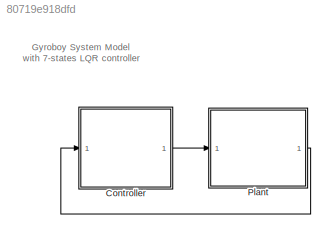
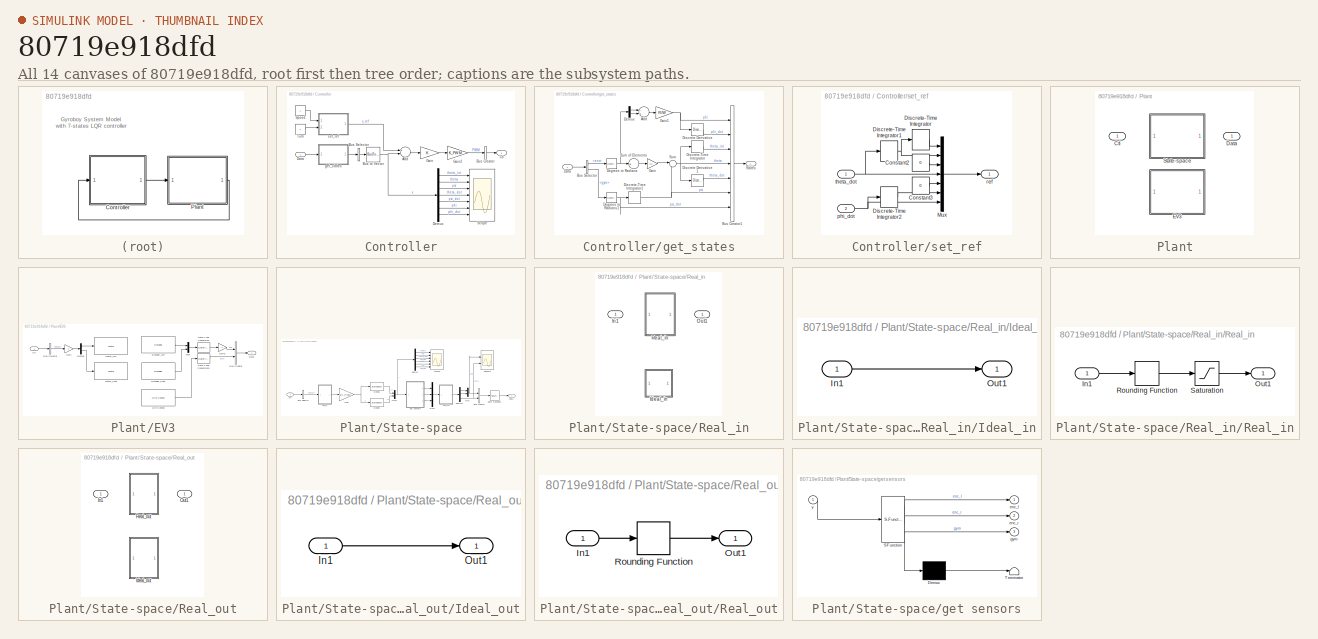
[diagram: thumbnail index - all 14 canvases of the model, root first then tree order]
MODEL slx_80719e918dfd
KIND model
CONFIG AbsTol = auto
CONFIG EnableMultiTasking = off
CONFIG FixedStep = Ts
CONFIG InitFcn = plant\ncontrol
CONFIG MaxStep = auto
CONFIG MinStep = auto
CONFIG PreLoadFcn = config\npreload
CONFIG RelTol = 1e-3
CONFIG SampleTimeConstraint = Unconstrained
CONFIG Solver = VariableStepAuto
CONFIG SolverName = VariableStepAuto
CONFIG StartTime = 0.0
CONFIG StopTime = 10.0
BLOCK [SubSystem] Controller
  Ports = [1, 1]
  RequestExecContextInheritance = off
  Variant = off
BLOCK [Sum] Controller/Add
  InputSameDT = off
  Inputs = +-
  OutDataTypeStr = Inherit: Inherit via internal rule
  Ports = [2, 1]
  SaturateOnIntegerOverflow = off
BLOCK [BusCreator] Controller/Bus Creator
  DisplayOption = bar
  InheritFromInputs = off
  Inputs = 1
  OutDataTypeStr = Bus: Ctl
  Ports = [1, 1]
BLOCK [BusSelector] Controller/Bus Selector
  OutputAsBus = on
  OutputSignals = theta_int,theta,psi,theta_dot,psi_dot,phi,phi_dot
  Ports = [1, 1]
BLOCK [BusToVector] Controller/Bus to Vector
BLOCK [Outport] Controller/Ctl
  IconDisplay = Port number
BLOCK [Inport] Controller/Data
  IconDisplay = Port number
BLOCK [Demux] Controller/Demux
  DisplayOption = bar
  Outputs = 7
  Ports = [1, 7]
BLOCK [Gain] Controller/Gain
  Gain = K
  Multiplication = Matrix(K*u)
  OutDataTypeStr = Inherit: Inherit via internal rule
  ParamDataTypeStr = Inherit: Inherit via internal rule
  SaturateOnIntegerOverflow = off
BLOCK [Gain] Controller/Gain2
  Gain = K_PWM
  OutDataTypeStr = Inherit: Inherit via internal rule
  ParamDataTypeStr = Inherit: Inherit via internal rule
  SaturateOnIntegerOverflow = off
BLOCK [Scope] Controller/Scope
  NumInputPorts = 7
  Ports = [7]
  ScopeSpecificationString = Simulink.scopes.TimeScopeBlockCfg('CurrentConfiguration', extmgr.ConfigurationSet(extmgr.Configuration('Core','General UI',true),extmgr.Configuration('Core','Source UI',true),extmgr.Configuration('Sources','WiredSimulink',true,'DataLoggingVariableName','robodata','DataLogging',true,'DataLoggingSaveFormat','StructureWithTime'),extmgr.Configuration('Visuals','Time Domain',true,'SerializedDisplays',{...<+6367ch>
BLOCK [Constant] Controller/Speed
BLOCK [Constant] Controller/Turn
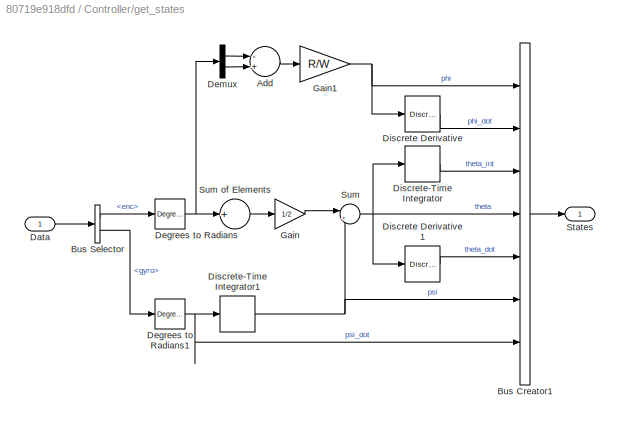
BLOCK [SubSystem] Controller/get_states
  Ports = [1, 1]
  RequestExecContextInheritance = off
  Variant = off
BLOCK [Sum] Controller/get_states/Add
  InputSameDT = off
  Inputs = -+
  OutDataTypeStr = Inherit: Inherit via internal rule
  Ports = [2, 1]
  SaturateOnIntegerOverflow = off
BLOCK [BusCreator] Controller/get_states/Bus Creator1
  DisplayOption = bar
  InheritFromInputs = on
  Inputs = 7
  Ports = [7, 1]
BLOCK [BusSelector] Controller/get_states/Bus Selector
  OutputAsBus = off
  OutputSignals = enc,gyro
  Ports = [1, 2]
BLOCK [Inport] Controller/get_states/Data
  IconDisplay = Port number
BLOCK [Reference] Controller/get_states/Degrees to Radians  REF=simulink_extras/Transformations/Degrees to
Radians
  Ports = [1, 1]
  SourceBlock = simulink_extras/Transformations/Degrees to\nRadians
  SourceProductBaseCode = SL
  SourceProductName = Simulink
  SourceType = DegreesToRadians
BLOCK [Reference] Controller/get_states/Degrees to Radians1  REF=simulink_extras/Transformations/Degrees to
Radians
  Ports = [1, 1]
  SourceBlock = simulink_extras/Transformations/Degrees to\nRadians
  SourceProductBaseCode = SL
  SourceProductName = Simulink
  SourceType = DegreesToRadians
BLOCK [Demux] Controller/get_states/Demux
  DisplayOption = bar
  Outputs = 2
  Ports = [1, 2]
BLOCK [Reference] Controller/get_states/Discrete Derivative  REF=simulink/Discrete/Discrete Derivative
  Ports = [1, 1]
  SourceBlock = simulink/Discrete/Discrete Derivative
  SourceProductBaseCode = SL
  SourceProductName = Simulink
  SourceType = Discrete Derivative
BLOCK [Reference] Controller/get_states/Discrete Derivative1  REF=simulink/Discrete/Discrete Derivative
  Ports = [1, 1]
  SourceBlock = simulink/Discrete/Discrete Derivative
  SourceProductBaseCode = SL
  SourceProductName = Simulink
  SourceType = Discrete Derivative
BLOCK [DiscreteIntegrator] Controller/get_states/Discrete-Time Integrator
  ICPrevOutput = DiscIntNeverNeededParam
  ICPrevScaledInput = DiscIntNeverNeededParam
  InitialConditionSetting = State (most efficient)
  Ports = [1, 1]
  SampleTime = -1
BLOCK [DiscreteIntegrator] Controller/get_states/Discrete-Time Integrator1
  ICPrevOutput = DiscIntNeverNeededParam
  ICPrevScaledInput = DiscIntNeverNeededParam
  InitialConditionSetting = State (most efficient)
  Ports = [1, 1]
  SampleTime = -1
BLOCK [Gain] Controller/get_states/Gain
  Gain = 1/2
  OutDataTypeStr = Inherit: Inherit via internal rule
  ParamDataTypeStr = Inherit: Inherit via internal rule
  SaturateOnIntegerOverflow = off
BLOCK [Gain] Controller/get_states/Gain1
  Gain = R/W
  OutDataTypeStr = Inherit: Inherit via internal rule
  ParamDataTypeStr = Inherit: Inherit via internal rule
  SaturateOnIntegerOverflow = off
BLOCK [Outport] Controller/get_states/States
  IconDisplay = Port number
BLOCK [Sum] Controller/get_states/Sum
  IconShape = round
  InputSameDT = off
  Inputs = |++
  OutDataTypeStr = Inherit: Inherit via internal rule
  Ports = [2, 1]
  SaturateOnIntegerOverflow = off
BLOCK [Sum] Controller/get_states/Sum of Elements
  InputSameDT = off
  Inputs = +
  OutDataTypeStr = Inherit: Inherit via internal rule
  Ports = [1, 1]
  SaturateOnIntegerOverflow = off
BLOCK [SubSystem] Controller/set_ref
  Ports = [2, 1]
  RequestExecContextInheritance = off
  Variant = off
BLOCK [Constant] Controller/set_ref/Constant2
  Value = 0
BLOCK [Constant] Controller/set_ref/Constant3
  Value = 0
BLOCK [DiscreteIntegrator] Controller/set_ref/Discrete-Time Integrator
  ICPrevOutput = DiscIntNeverNeededParam
  ICPrevScaledInput = DiscIntNeverNeededParam
  InitialConditionSetting = State (most efficient)
  Ports = [1, 1]
  SampleTime = -1
BLOCK [DiscreteIntegrator] Controller/set_ref/Discrete-Time Integrator1
  ICPrevOutput = DiscIntNeverNeededParam
  ICPrevScaledInput = DiscIntNeverNeededParam
  InitialConditionSetting = State (most efficient)
  Ports = [1, 1]
  SampleTime = -1
BLOCK [DiscreteIntegrator] Controller/set_ref/Discrete-Time Integrator2
  ICPrevOutput = DiscIntNeverNeededParam
  ICPrevScaledInput = DiscIntNeverNeededParam
  InitialConditionSetting = State (most efficient)
  Ports = [1, 1]
  SampleTime = -1
BLOCK [Mux] Controller/set_ref/Mux
  DisplayOption = bar
  Inputs = 7
  Ports = [7, 1]
BLOCK [Inport] Controller/set_ref/phi_dot
  IconDisplay = Port number
  Port = 2
BLOCK [Outport] Controller/set_ref/ref
  IconDisplay = Port number
BLOCK [Inport] Controller/set_ref/theta_dot
  IconDisplay = Port number
BLOCK [SubSystem] Plant
  Ports = [1, 1]
  RequestExecContextInheritance = off
  Variant = on
  VariantControl = Variant1
BLOCK [Outport] Plant/ Data
  IconDisplay = Port number
BLOCK [Inport] Plant/Ctl 
  IconDisplay = Port number
BLOCK [SubSystem] Plant/EV3
  Ports = [1, 1]
  RequestExecContextInheritance = off
  Variant = off
  VariantControl = HW == 1
BLOCK [BusCreator] Plant/EV3/Bus Creator
  DisplayOption = bar
  InheritFromInputs = on
  Inputs = 2
  Ports = [2, 1]
BLOCK [BusSelector] Plant/EV3/Bus Selector
  OutputAsBus = off
  OutputSignals = PWM
  Ports = [1, 1]
BLOCK [Inport] Plant/EV3/Ctl
  IconDisplay = Port number
BLOCK [Outport] Plant/EV3/Data
  IconDisplay = Port number
BLOCK [DataTypeConversion] Plant/EV3/Data Type Conversion
  OutDataTypeStr = double
  RndMeth = Floor
  SaturateOnIntegerOverflow = off
BLOCK [DataTypeConversion] Plant/EV3/Data Type Conversion1
  OutDataTypeStr = double
  RndMeth = Floor
  SaturateOnIntegerOverflow = off
BLOCK [Demux] Plant/EV3/Demux
  DisplayOption = bar
  Outputs = 2
  Ports = [1, 2]
BLOCK [Reference] Plant/EV3/Encoder_left  REF=legoev3lib/Encoder
  Ports = [0, 1]
  SourceBlock = legoev3lib/Encoder
  SourceProductBaseCode = LEGOEV3
  SourceProductName = Simulink Support Package for LEGO MINDSTORMS EV3 Hardware
  SourceType = LEGO MINDSTORMS EV3 Encoder
BLOCK [Reference] Plant/EV3/Encoder_right  REF=legoev3lib/Encoder
  Ports = [0, 1]
  SourceBlock = legoev3lib/Encoder
  SourceProductBaseCode = LEGOEV3
  SourceProductName = Simulink Support Package for LEGO MINDSTORMS EV3 Hardware
  SourceType = LEGO MINDSTORMS EV3 Encoder
BLOCK [Gain] Plant/EV3/Gain
  Gain = -1
  OutDataTypeStr = Inherit: Inherit via internal rule
  ParamDataTypeStr = Inherit: Inherit via internal rule
  SaturateOnIntegerOverflow = off
BLOCK [Gain] Plant/EV3/Gain1
  Gain = -1
  OutDataTypeStr = Inherit: Inherit via internal rule
  ParamDataTypeStr = Inherit: Inherit via internal rule
  SaturateOnIntegerOverflow = off
BLOCK [Reference] Plant/EV3/Gyro Sensor  REF=legoev3lib/Gyro Sensor
  Ports = [0, 1]
  SourceBlock = legoev3lib/Gyro Sensor
  SourceProductBaseCode = LEGOEV3
  SourceProductName = Simulink Support Package for LEGO MINDSTORMS EV3 Hardware
  SourceType = LEGO MINDSTORMS EV3 Gyro Sensor
BLOCK [Reference] Plant/EV3/Motor_left  REF=legoev3lib/Motor
  Ports = [1]
  SourceBlock = legoev3lib/Motor
  SourceProductBaseCode = LEGOEV3
  SourceProductName = Simulink Support Package for LEGO MINDSTORMS EV3 Hardware
  SourceType = LEGO MINDSTORMS EV3 Motor
BLOCK [Reference] Plant/EV3/Motor_right  REF=legoev3lib/Motor
  Ports = [1]
  SourceBlock = legoev3lib/Motor
  SourceProductBaseCode = LEGOEV3
  SourceProductName = Simulink Support Package for LEGO MINDSTORMS EV3 Hardware
  SourceType = LEGO MINDSTORMS EV3 Motor
BLOCK [Mux] Plant/EV3/Mux
  DisplayOption = bar
  Inputs = 2
  Ports = [2, 1]
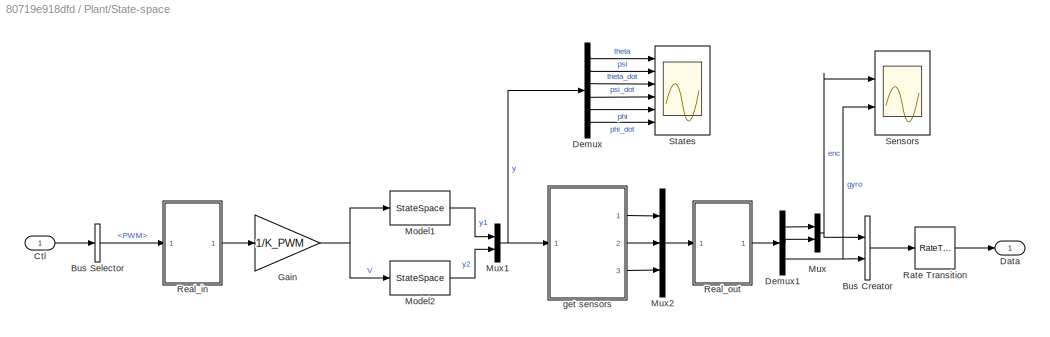
BLOCK [SubSystem] Plant/State-space
  Ports = [1, 1]
  RequestExecContextInheritance = off
  Variant = off
  VariantControl = (default)
BLOCK [BusCreator] Plant/State-space/Bus Creator
  DisplayOption = bar
  InheritFromInputs = on
  Inputs = 2
  Ports = [2, 1]
BLOCK [BusSelector] Plant/State-space/Bus Selector
  OutputAsBus = off
  OutputSignals = PWM
  Ports = [1, 1]
BLOCK [Inport] Plant/State-space/Ctl
  IconDisplay = Port number
BLOCK [Outport] Plant/State-space/Data
  IconDisplay = Port number
BLOCK [Demux] Plant/State-space/Demux
  DisplayOption = bar
  Outputs = 6
  Ports = [1, 6]
BLOCK [Demux] Plant/State-space/Demux1
  DisplayOption = bar
  Outputs = 3
  Ports = [1, 3]
BLOCK [Gain] Plant/State-space/Gain
  Gain = 1/K_PWM
  OutDataTypeStr = Inherit: Inherit via internal rule
  ParamDataTypeStr = Inherit: Inherit via internal rule
  SaturateOnIntegerOverflow = off
BLOCK [StateSpace] Plant/State-space/Model1
  A = A1
  B = B1
  C = C1
  D = D1
  Ports = [1, 1]
  X0 = [0 Psi0 0 0]
BLOCK [StateSpace] Plant/State-space/Model2
  A = A2
  B = B2
  C = C2
  D = D2
  Ports = [1, 1]
  X0 = 0
BLOCK [Mux] Plant/State-space/Mux
  DisplayOption = bar
  Inputs = 2
  Ports = [2, 1]
BLOCK [Mux] Plant/State-space/Mux1
  DisplayOption = bar
  Inputs = 2
  Ports = [2, 1]
BLOCK [Mux] Plant/State-space/Mux2
  DisplayOption = bar
  Inputs = 3
  Ports = [3, 1]
BLOCK [RateTransition] Plant/State-space/Rate Transition
  OutPortSampleTime = Ts
BLOCK [SubSystem] Plant/State-space/Real_in
  Ports = [1, 1]
  RequestExecContextInheritance = off
  Variant = on
  VariantControl = Variant1
BLOCK [Outport] Plant/State-space/Real_in/ Out1
  IconDisplay = Port number
BLOCK [SubSystem] Plant/State-space/Real_in/Ideal_in
  Ports = [1, 1]
  RequestExecContextInheritance = off
  Variant = off
  VariantControl = (default)
BLOCK [Outport] Plant/State-space/Real_in/Ideal_in/ Out1
  IconDisplay = Port number
BLOCK [Inport] Plant/State-space/Real_in/Ideal_in/In1 
  IconDisplay = Port number
BLOCK [Inport] Plant/State-space/Real_in/In1 
  IconDisplay = Port number
BLOCK [SubSystem] Plant/State-space/Real_in/Real_in
  Ports = [1, 1]
  RequestExecContextInheritance = off
  Variant = off
  VariantControl = real_model == 1
BLOCK [Inport] Plant/State-space/Real_in/Real_in/In1
  IconDisplay = Port number
BLOCK [Outport] Plant/State-space/Real_in/Real_in/Out1
  IconDisplay = Port number
BLOCK [Rounding] Plant/State-space/Real_in/Real_in/Rounding Function
  Operator = round
BLOCK [Saturate] Plant/State-space/Real_in/Real_in/Saturation
  InputPortMap = u0
  LowerLimit = -100
  Ports = [1, 1]
  UpperLimit = 100
BLOCK [SubSystem] Plant/State-space/Real_out
  Ports = [1, 1]
  RequestExecContextInheritance = off
  Variant = on
  VariantControl = Variant1
BLOCK [Outport] Plant/State-space/Real_out/ Out1
  IconDisplay = Port number
BLOCK [SubSystem] Plant/State-space/Real_out/Ideal_out
  Ports = [1, 1]
  RequestExecContextInheritance = off
  Variant = off
  VariantControl = (default)
BLOCK [Inport] Plant/State-space/Real_out/Ideal_out/In1
  IconDisplay = Port number
BLOCK [Outport] Plant/State-space/Real_out/Ideal_out/Out1
  IconDisplay = Port number
BLOCK [Inport] Plant/State-space/Real_out/In1 
  IconDisplay = Port number
BLOCK [SubSystem] Plant/State-space/Real_out/Real_out
  Ports = [1, 1]
  RequestExecContextInheritance = off
  Variant = off
  VariantControl = real_model == 1
BLOCK [Inport] Plant/State-space/Real_out/Real_out/In1
  IconDisplay = Port number
BLOCK [Outport] Plant/State-space/Real_out/Real_out/Out1
  IconDisplay = Port number
BLOCK [Rounding] Plant/State-space/Real_out/Real_out/Rounding Function
  Operator = round
BLOCK [Scope] Plant/State-space/Sensors
  NumInputPorts = 2
  Ports = [2]
  ScopeSpecificationString = Simulink.scopes.TimeScopeBlockCfg('CurrentConfiguration', extmgr.ConfigurationSet(extmgr.Configuration('Core','General UI',true),extmgr.Configuration('Core','Source UI',true),extmgr.Configuration('Sources','WiredSimulink',true,'DataLoggingVariableName','Sensors'),extmgr.Configuration('Visuals','Time Domain',true,'SerializedDisplays',{struct('MinYLimReal','-2683299550.00000','MaxYLimReal','26748594...<+2036ch>
BLOCK [Scope] Plant/State-space/States
  NumInputPorts = 6
  Ports = [6]
  ScopeSpecificationString = Simulink.scopes.TimeScopeBlockCfg('CurrentConfiguration', extmgr.ConfigurationSet(extmgr.Configuration('Core','General UI',true),extmgr.Configuration('Core','Source UI',true),extmgr.Configuration('Sources','WiredSimulink',true),extmgr.Configuration('Visuals','Time Domain',true,'SerializedDisplays',{struct('MinYLimReal','-1429.26249','MaxYLimReal','-1390.84645','YLabelReal','','MinYLimMag','  0.000...<+5155ch>
BLOCK [SubSystem] Plant/State-space/get sensors
  ErrorFcn = Stateflow.Translate.translate
  PermitHierarchicalResolution = ExplicitOnly
  Ports = [1, 3]
  RequestExecContextInheritance = off
  SFBlockType = MATLAB Function
  TreatAsAtomicUnit = on
  Variant = off
BLOCK [Demux] Plant/State-space/get sensors/ Demux 
  Outputs = 1
  Ports = [1, 1]
BLOCK [S-Function] Plant/State-space/get sensors/ SFunction 
  EnableBusSupport = on
  FunctionName = sf_sfun
  Parameters = R,W
  PortCounts = [1 4]
  Ports = [1, 4]
  SFcnIsStateOwnerBlock = off
  SFunctionDeploymentMode = off
  Tag = Stateflow S-Function dichboy_full 2
BLOCK [Terminator] Plant/State-space/get sensors/ Terminator 
BLOCK [Outport] Plant/State-space/get sensors/enc_l
  IconDisplay = Port number
BLOCK [Outport] Plant/State-space/get sensors/enc_r
  IconDisplay = Port number
  Port = 2
BLOCK [Outport] Plant/State-space/get sensors/gyro
  IconDisplay = Port number
  Port = 3
BLOCK [Inport] Plant/State-space/get sensors/y
  IconDisplay = Port number
ANNOTATION (root): Gyroboy System Model with 7-states LQR controller
LINE Controller/Add:1 -> Controller/Gain:1
LINE Controller/Bus Creator:1 -> Controller/Ctl:1
LINE Controller/Bus Selector:1 -> Controller/Bus to Vector:1
NET Controller/Bus to Vector:1 -> Controller/Add:2, Controller/Demux:1
LINE Controller/Data:1 -> Controller/get_states:1
LINE Controller/Demux:1 -> Controller/Scope:1
LINE Controller/Demux:2 -> Controller/Scope:2
LINE Controller/Demux:3 -> Controller/Scope:3
LINE Controller/Demux:4 -> Controller/Scope:4
LINE Controller/Demux:5 -> Controller/Scope:5
LINE Controller/Demux:6 -> Controller/Scope:6
LINE Controller/Demux:7 -> Controller/Scope:7
LINE Controller/Gain2:1 -> Controller/Bus Creator:1
LINE Controller/Gain:1 -> Controller/Gain2:1
LINE Controller/Speed:1 -> Controller/set_ref:1
LINE Controller/Turn:1 -> Controller/set_ref:2
LINE Controller/get_states/Add:1 -> Controller/get_states/Gain1:1
LINE Controller/get_states/Bus Creator1:1 -> Controller/get_states/States:1
LINE Controller/get_states/Bus Selector:1 -> Controller/get_states/Degrees to Radians:1
LINE Controller/get_states/Bus Selector:2 -> Controller/get_states/Degrees to Radians1:1
LINE Controller/get_states/Data:1 -> Controller/get_states/Bus Selector:1
NET Controller/get_states/Degrees to Radians1:1 -> Controller/get_states/Bus Creator1:7, Controller/get_states/Discrete-Time Integrator1:1
NET Controller/get_states/Degrees to Radians:1 -> Controller/get_states/Demux:1, Controller/get_states/Sum of Elements:1
LINE Controller/get_states/Demux:1 -> Controller/get_states/Add:1
LINE Controller/get_states/Demux:2 -> Controller/get_states/Add:2
LINE Controller/get_states/Discrete Derivative1:1 -> Controller/get_states/Bus Creator1:5
LINE Controller/get_states/Discrete Derivative:1 -> Controller/get_states/Bus Creator1:2
NET Controller/get_states/Discrete-Time Integrator1:1 -> Controller/get_states/Bus Creator1:6, Controller/get_states/Sum:2
LINE Controller/get_states/Discrete-Time Integrator:1 -> Controller/get_states/Bus Creator1:3
NET Controller/get_states/Gain1:1 -> Controller/get_states/Bus Creator1:1, Controller/get_states/Discrete Derivative:1
LINE Controller/get_states/Gain:1 -> Controller/get_states/Sum:1
LINE Controller/get_states/Sum of Elements:1 -> Controller/get_states/Gain:1
NET Controller/get_states/Sum:1 -> Controller/get_states/Bus Creator1:4, Controller/get_states/Discrete Derivative1:1, Controller/get_states/Discrete-Time Integrator:1
LINE Controller/get_states:1 -> Controller/Bus Selector:1
LINE Controller/set_ref/Constant2:1 -> Controller/set_ref/Mux:3
LINE Controller/set_ref/Constant3:1 -> Controller/set_ref/Mux:5
NET Controller/set_ref/Discrete-Time Integrator1:1 -> Controller/set_ref/Discrete-Time Integrator:1, Controller/set_ref/Mux:2
LINE Controller/set_ref/Discrete-Time Integrator2:1 -> Controller/set_ref/Mux:6
LINE Controller/set_ref/Discrete-Time Integrator:1 -> Controller/set_ref/Mux:1
LINE Controller/set_ref/Mux:1 -> Controller/set_ref/ref:1
NET Controller/set_ref/phi_dot:1 -> Controller/set_ref/Discrete-Time Integrator2:1, Controller/set_ref/Mux:7
NET Controller/set_ref/theta_dot:1 -> Controller/set_ref/Discrete-Time Integrator1:1, Controller/set_ref/Mux:4
LINE Controller/set_ref:1 -> Controller/Add:1
LINE Controller:1 -> Plant:1
LINE Plant/EV3/Bus Creator:1 -> Plant/EV3/Data:1
LINE Plant/EV3/Bus Selector:1 -> Plant/EV3/Gain:1
LINE Plant/EV3/Ctl:1 -> Plant/EV3/Bus Selector:1
LINE Plant/EV3/Data Type Conversion1:1 -> Plant/EV3/Bus Creator:2
LINE Plant/EV3/Data Type Conversion:1 -> Plant/EV3/Gain1:1
LINE Plant/EV3/Demux:1 -> Plant/EV3/Motor_left:1
LINE Plant/EV3/Demux:2 -> Plant/EV3/Motor_right:1
LINE Plant/EV3/Encoder_left:1 -> Plant/EV3/Mux:1
LINE Plant/EV3/Encoder_right:1 -> Plant/EV3/Mux:2
LINE Plant/EV3/Gain1:1 -> Plant/EV3/Bus Creator:1
LINE Plant/EV3/Gain:1 -> Plant/EV3/Demux:1
LINE Plant/EV3/Gyro Sensor:1 -> Plant/EV3/Data Type Conversion1:1
LINE Plant/EV3/Mux:1 -> Plant/EV3/Data Type Conversion:1
LINE Plant/State-space/Bus Creator:1 -> Plant/State-space/Rate Transition:1
LINE Plant/State-space/Bus Selector:1 -> Plant/State-space/Real_in:1
LINE Plant/State-space/Ctl:1 -> Plant/State-space/Bus Selector:1
LINE Plant/State-space/Demux1:1 -> Plant/State-space/Mux:1
LINE Plant/State-space/Demux1:2 -> Plant/State-space/Mux:2
NET Plant/State-space/Demux1:3 -> Plant/State-space/Bus Creator:2, Plant/State-space/Sensors:2
LINE Plant/State-space/Demux:1 -> Plant/State-space/States:1
LINE Plant/State-space/Demux:2 -> Plant/State-space/States:2
LINE Plant/State-space/Demux:3 -> Plant/State-space/States:3
LINE Plant/State-space/Demux:4 -> Plant/State-space/States:4
LINE Plant/State-space/Demux:5 -> Plant/State-space/States:5
LINE Plant/State-space/Demux:6 -> Plant/State-space/States:6
NET Plant/State-space/Gain:1 -> Plant/State-space/Model1:1, Plant/State-space/Model2:1
LINE Plant/State-space/Model1:1 -> Plant/State-space/Mux1:1
LINE Plant/State-space/Model2:1 -> Plant/State-space/Mux1:2
NET Plant/State-space/Mux1:1 -> Plant/State-space/Demux:1, Plant/State-space/get sensors:1
LINE Plant/State-space/Mux2:1 -> Plant/State-space/Real_out:1
NET Plant/State-space/Mux:1 -> Plant/State-space/Bus Creator:1, Plant/State-space/Sensors:1
LINE Plant/State-space/Rate Transition:1 -> Plant/State-space/Data:1
LINE Plant/State-space/Real_in/Ideal_in/In1 :1 -> Plant/State-space/Real_in/Ideal_in/ Out1:1
LINE Plant/State-space/Real_in/Real_in/In1:1 -> Plant/State-space/Real_in/Real_in/Rounding Function:1
LINE Plant/State-space/Real_in/Real_in/Rounding Function:1 -> Plant/State-space/Real_in/Real_in/Saturation:1
LINE Plant/State-space/Real_in/Real_in/Saturation:1 -> Plant/State-space/Real_in/Real_in/Out1:1
LINE Plant/State-space/Real_in:1 -> Plant/State-space/Gain:1
LINE Plant/State-space/Real_out/Ideal_out/In1:1 -> Plant/State-space/Real_out/Ideal_out/Out1:1
LINE Plant/State-space/Real_out/Real_out/In1:1 -> Plant/State-space/Real_out/Real_out/Rounding Function:1
LINE Plant/State-space/Real_out/Real_out/Rounding Function:1 -> Plant/State-space/Real_out/Real_out/Out1:1
LINE Plant/State-space/Real_out:1 -> Plant/State-space/Demux1:1
LINE Plant/State-space/get sensors:1 -> Plant/State-space/Mux2:1
LINE Plant/State-space/get sensors:2 -> Plant/State-space/Mux2:2
LINE Plant/State-space/get sensors:3 -> Plant/State-space/Mux2:3
LINE Plant:1 -> Controller:1
note: NET lines group one-source signal fan-out (src -> all destinations, sorted); 1:1 wires keep LINE
CHART Plant/State-space/get sensors states=1 transitions=1
  STATE_LABEL 'eML_blk_kernel()'
  STATE_LABEL 'SCRIPT:\nfunction [enc_l, enc_r, gyro] = sensors(y, R, W)\nenc_l = rad2deg(y(1) - W/R/2 * y(5) - y(2));\nenc_r = rad2deg(y(1) + W/R/2 * y(5) - y(2));\ngyro  = rad2deg(y(4));'
